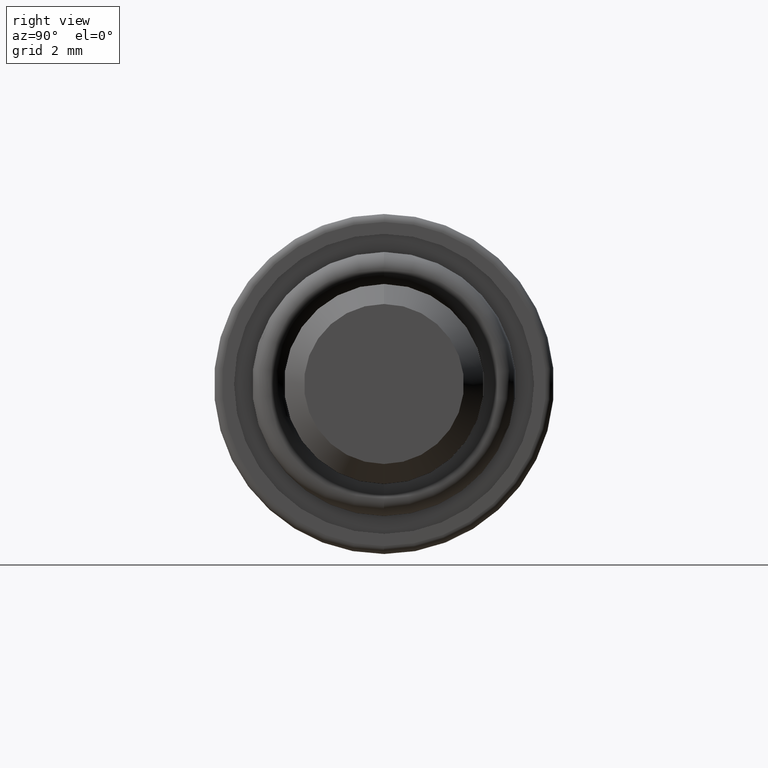
[diagram: clean part render]
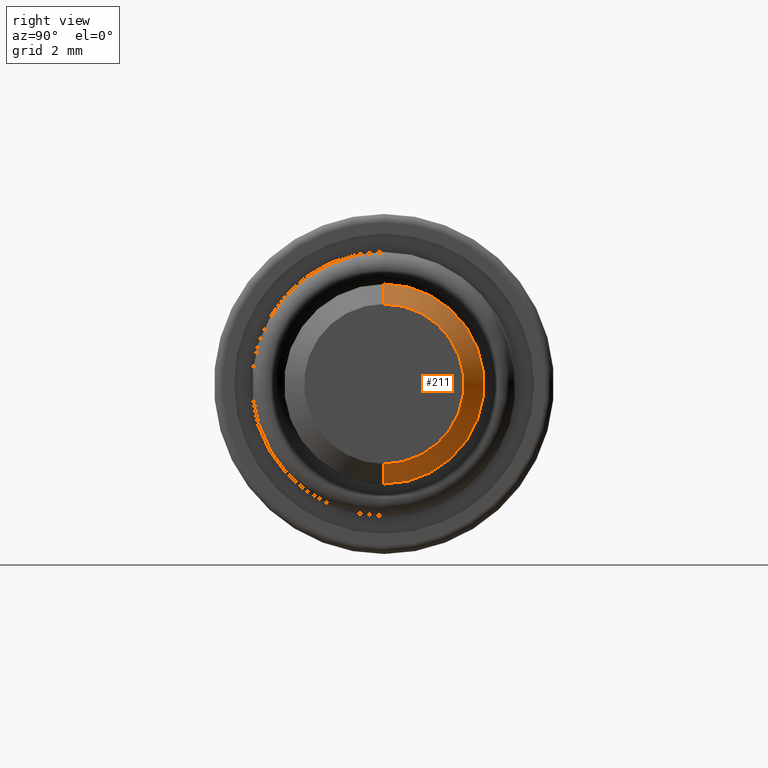
[diagram: same view with one face highlighted and labeled with its STEP entity id]
A machine part, right view. The second image highlights one B-rep face of the part: STEP entity #211.
In plain terms, the highlighted conical surface has half-angle 45 deg.
Its self-contained STEP definition (entity closure, byte-faithful):
#12 = CARTESIAN_POINT ( 'NONE',  ( 10.00000000000000000, 0.0000000000000000000, 0.0000000000000000000 ) ) ;
#38 = DIRECTION ( 'NONE',  ( -0.7071067811865489100, 0.0000000000000000000, 0.7071067811865460200 ) ) ;
#58 = CIRCLE ( 'NONE', #546, 2.000000000000001800 ) ;
#211 = ADVANCED_FACE ( 'NONE', ( #646 ), #566, .T. ) ;
#224 = CARTESIAN_POINT ( 'NONE',  ( 10.00000000000000000, 0.0000000000000000000, 2.000000000000001800 ) ) ;
#240 = EDGE_CURVE ( 'NONE', #271, #730, #58, .T. ) ;
#271 = VERTEX_POINT ( 'NONE', #795 ) ;
#305 = DIRECTION ( 'NONE',  ( -1.000000000000000000, 0.0000000000000000000, 0.0000000000000000000 ) ) ;
#340 = AXIS2_PLACEMENT_3D ( 'NONE', #12, #530, #533 ) ;
#365 = CARTESIAN_POINT ( 'NONE',  ( 9.500000000000000000, 0.0000000000000000000, 2.500000000000000000 ) ) ;
#379 = EDGE_CURVE ( 'NONE', #271, #539, #676, .T. ) ;
#384 = VERTEX_POINT ( 'NONE', #365 ) ;
#389 = LINE ( 'NONE', #453, #548 ) ;
#433 = DIRECTION ( 'NONE',  ( 0.0000000000000000000, 0.0000000000000000000, -1.000000000000000000 ) ) ;
#453 = CARTESIAN_POINT ( 'NONE',  ( 10.00000000000000000, 0.0000000000000000000, 2.000000000000001800 ) ) ;
#468 = DIRECTION ( 'NONE',  ( -0.7071067811865489100, 8.659560562354913100E-017, -0.7071067811865460200 ) ) ;
#491 = CARTESIAN_POINT ( 'NONE',  ( 9.500000000000000000, 0.0000000000000000000, 0.0000000000000000000 ) ) ;
#510 = EDGE_LOOP ( 'NONE', ( #708, #819, #678, #721 ) ) ;
#513 = DIRECTION ( 'NONE',  ( 0.0000000000000000000, 0.0000000000000000000, -1.000000000000000000 ) ) ;
#520 = VECTOR ( 'NONE', #468, 1000.000000000000100 ) ;
#530 = DIRECTION ( 'NONE',  ( -1.000000000000000000, 0.0000000000000000000, 0.0000000000000000000 ) ) ;
#533 = DIRECTION ( 'NONE',  ( 0.0000000000000000000, 0.0000000000000000000, 1.000000000000000000 ) ) ;
#539 = VERTEX_POINT ( 'NONE', #545 ) ;
#545 = CARTESIAN_POINT ( 'NONE',  ( 9.500000000000000000, 3.061616997868383100E-016, -2.500000000000000000 ) ) ;
#546 = AXIS2_PLACEMENT_3D ( 'NONE', #769, #605, #433 ) ;
#548 = VECTOR ( 'NONE', #38, 1000.000000000000100 ) ;
#566 = CONICAL_SURFACE ( 'NONE', #340, 2.000000000000001800, 0.7853981633974461700 ) ;
#589 = EDGE_CURVE ( 'NONE', #384, #539, #607, .T. ) ;
#605 = DIRECTION ( 'NONE',  ( 1.000000000000000000, 0.0000000000000000000, 0.0000000000000000000 ) ) ;
#607 = CIRCLE ( 'NONE', #785, 2.500000000000000000 ) ;
#635 = EDGE_CURVE ( 'NONE', #730, #384, #389, .T. ) ;
#646 = FACE_OUTER_BOUND ( 'NONE', #510, .T. ) ;
#676 = LINE ( 'NONE', #773, #520 ) ;
#678 = ORIENTED_EDGE ( 'NONE', *, *, #589, .F. ) ;
#708 = ORIENTED_EDGE ( 'NONE', *, *, #240, .F. ) ;
#721 = ORIENTED_EDGE ( 'NONE', *, *, #635, .F. ) ;
#730 = VERTEX_POINT ( 'NONE', #224 ) ;
#769 = CARTESIAN_POINT ( 'NONE',  ( 10.00000000000000000, 0.0000000000000000000, 0.0000000000000000000 ) ) ;
#773 = CARTESIAN_POINT ( 'NONE',  ( 10.00000000000000000, 2.449293598294708900E-016, -2.000000000000001800 ) ) ;
#785 = AXIS2_PLACEMENT_3D ( 'NONE', #491, #305, #513 ) ;
#795 = CARTESIAN_POINT ( 'NONE',  ( 10.00000000000000000, 2.755455298081545800E-016, -2.000000000000001800 ) ) ;
#819 = ORIENTED_EDGE ( 'NONE', *, *, #379, .T. ) ;